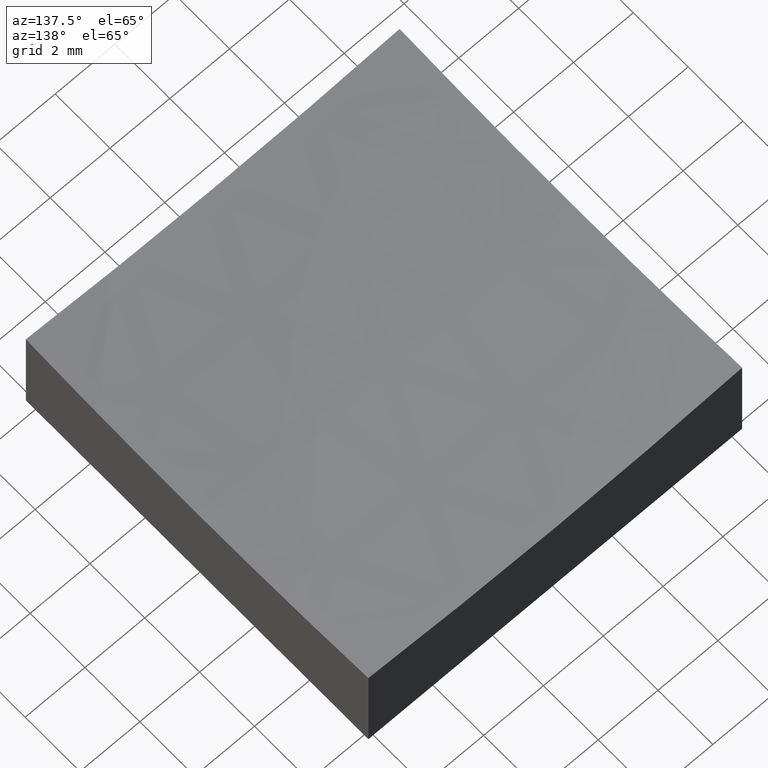
[diagram: clean part render]
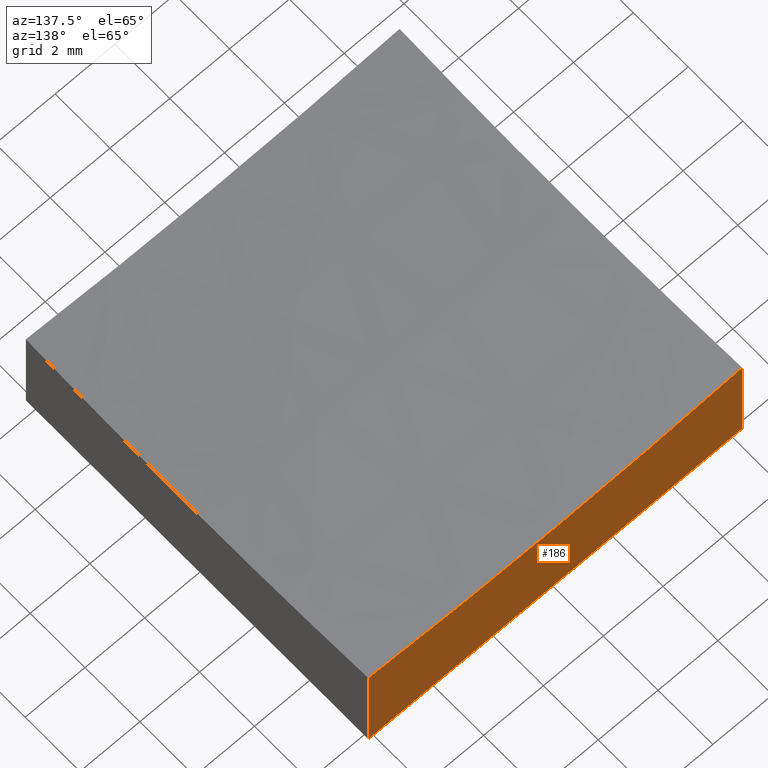
[diagram: same view with one face highlighted and labeled with its STEP entity id]
A machine part, auxiliary view. The second image highlights one B-rep face of the part: STEP entity #186.
In plain terms, the highlighted planar face has unit normal (0, 1, 0).
Its self-contained STEP definition (entity closure, byte-faithful):
#7 = PLANE ( 'NONE',  #18 ) ;
#10 = VECTOR ( 'NONE', #60, 1000.000000000000000 ) ;
#12 = VERTEX_POINT ( 'NONE', #196 ) ;
#13 = CARTESIAN_POINT ( 'NONE',  ( 6.250000000000000000, 6.250000000000000888, 0.0000000000000000000 ) ) ;
#17 = LINE ( 'NONE', #56, #162 ) ;
#18 = AXIS2_PLACEMENT_3D ( 'NONE', #168, #89, #216 ) ;
#30 = EDGE_CURVE ( 'NONE', #12, #106, #212, .T. ) ;
#53 = CARTESIAN_POINT ( 'NONE',  ( 6.250000000000000000, 6.250000000000000888, 3.560277938344263760 ) ) ;
#56 = CARTESIAN_POINT ( 'NONE',  ( 6.250000000000000000, 6.250000000000000888, 10.00000000000000000 ) ) ;
#60 = DIRECTION ( 'NONE',  ( 1.000000000000000000, 0.0000000000000000000, 0.0000000000000000000 ) ) ;
#61 = CARTESIAN_POINT ( 'NONE',  ( -6.250000000000000000, 6.250000000000000888, 3.560277938344263760 ) ) ;
#68 = EDGE_CURVE ( 'NONE', #93, #106, #17, .T. ) ;
#74 = AXIS2_PLACEMENT_3D ( 'NONE', #154, #132, #94 ) ;
#87 = ORIENTED_EDGE ( 'NONE', *, *, #30, .F. ) ;
#89 = DIRECTION ( 'NONE',  ( 0.0000000000000000000, 1.000000000000000000, 0.0000000000000000000 ) ) ;
#93 = VERTEX_POINT ( 'NONE', #53 ) ;
#94 = DIRECTION ( 'NONE',  ( 0.0000000000000000000, 0.0000000000000000000, 1.000000000000000000 ) ) ;
#106 = VERTEX_POINT ( 'NONE', #13 ) ;
#108 = EDGE_CURVE ( 'NONE', #93, #202, #166, .T. ) ;
#111 = LINE ( 'NONE', #172, #205 ) ;
#117 = EDGE_CURVE ( 'NONE', #202, #12, #111, .T. ) ;
#128 = ORIENTED_EDGE ( 'NONE', *, *, #117, .F. ) ;
#132 = DIRECTION ( 'NONE',  ( 0.0000000000000000000, 1.000000000000000000, 0.0000000000000000000 ) ) ;
#133 = ORIENTED_EDGE ( 'NONE', *, *, #68, .T. ) ;
#152 = FACE_OUTER_BOUND ( 'NONE', #239, .T. ) ;
#154 = CARTESIAN_POINT ( 'NONE',  ( 8.939921633775681592E-15, 6.250000000000000888, 73.00000000000001421 ) ) ;
#162 = VECTOR ( 'NONE', #208, 1000.000000000000000 ) ;
#164 = CARTESIAN_POINT ( 'NONE',  ( -6.250000000000000000, 6.250000000000000888, 0.0000000000000000000 ) ) ;
#166 = CIRCLE ( 'NONE', #74, 69.72042383692169665 ) ;
#168 = CARTESIAN_POINT ( 'NONE',  ( -6.250000000000000000, 6.250000000000000888, 10.00000000000000000 ) ) ;
#170 = ORIENTED_EDGE ( 'NONE', *, *, #108, .F. ) ;
#172 = CARTESIAN_POINT ( 'NONE',  ( -6.250000000000000000, 6.250000000000000888, 10.00000000000000000 ) ) ;
#174 = DIRECTION ( 'NONE',  ( -0.0000000000000000000, -0.0000000000000000000, -1.000000000000000000 ) ) ;
#186 = ADVANCED_FACE ( 'NONE', ( #152 ), #7, .T. ) ;
#196 = CARTESIAN_POINT ( 'NONE',  ( -6.250000000000000000, 6.250000000000000888, 0.0000000000000000000 ) ) ;
#202 = VERTEX_POINT ( 'NONE', #61 ) ;
#205 = VECTOR ( 'NONE', #174, 1000.000000000000000 ) ;
#208 = DIRECTION ( 'NONE',  ( -0.0000000000000000000, -0.0000000000000000000, -1.000000000000000000 ) ) ;
#212 = LINE ( 'NONE', #164, #10 ) ;
#216 = DIRECTION ( 'NONE',  ( 0.0000000000000000000, -0.0000000000000000000, 1.000000000000000000 ) ) ;
#239 = EDGE_LOOP ( 'NONE', ( #170, #133, #87, #128 ) ) ;